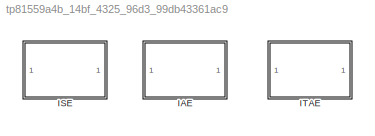
MODEL tp81559a4b_14bf_4325_96d3_99db43361ac9
KIND library
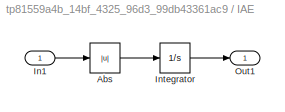
BLOCK [SubSystem] IAE
  MaskDescription = IAE performacne index\n\noutput = int |input| dt
  MaskDisplay = disp('IAE')\nport_label('input',1,'e')\nport_label('output',1,'iae')
  MaskIconFrame = on
  MaskIconOpaque = on
  MaskIconRotate = none
  MaskIconUnits = autoscale
  MinAlgLoopOccurrences = off
  Ports = [1, 1]
  RTWSystemCode = Auto
BLOCK [Abs] IAE/Abs
  SaturateOnIntegerOverflow = off
BLOCK [Inport] IAE/In1
  IconDisplay = Port number
BLOCK [Integrator] IAE/Integrator
  Ports = [1, 1]
BLOCK [Outport] IAE/Out1
  IconDisplay = Port number
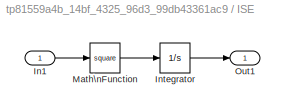
BLOCK [SubSystem] ISE
  MaskDescription = ISE performance index\n\noutput = int (input)^2 dt
  MaskDisplay = disp('ISE')\nport_label('input',1,'e')\nport_label('output',1,'ise')
  MaskIconFrame = on
  MaskIconOpaque = on
  MaskIconRotate = none
  MaskIconUnits = autoscale
  MinAlgLoopOccurrences = off
  Ports = [1, 1]
  RTWSystemCode = Auto
BLOCK [Inport] ISE/In1
  IconDisplay = Port number
BLOCK [Integrator] ISE/Integrator
  Ports = [1, 1]
BLOCK [Math] ISE/Math\nFunction
  Operator = square
  OutDataType = sfix(16)
  OutScaling = 2^0
  Ports = [1, 1]
BLOCK [Outport] ISE/Out1
  IconDisplay = Port number
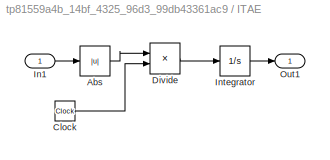
BLOCK [SubSystem] ITAE
  MaskDescription = ITAE performance index\n\noutput = int t|input| dt
  MaskDisplay = disp('ITAE')\nport_label('input',1,'e')\nport_label('output',1,'itae')
  MaskIconFrame = on
  MaskIconOpaque = on
  MaskIconRotate = none
  MaskIconUnits = autoscale
  MinAlgLoopOccurrences = off
  Ports = [1, 1]
  RTWSystemCode = Auto
BLOCK [Abs] ITAE/Abs
  SaturateOnIntegerOverflow = off
BLOCK [Clock] ITAE/Clock
  Decimation = 10
BLOCK [Product] ITAE/Divide
  InputSameDT = off
  Inputs = **
  OutDataType = sfix(16)
  OutDataTypeMode = Inherit via internal rule
  OutScaling = 2^-10
  Ports = [2, 1]
  RndMeth = Floor
  SaturateOnIntegerOverflow = off
BLOCK [Inport] ITAE/In1
  IconDisplay = Port number
BLOCK [Integrator] ITAE/Integrator
  Ports = [1, 1]
BLOCK [Outport] ITAE/Out1
  IconDisplay = Port number
LINE IAE/Abs:1 -> IAE/Integrator:1
LINE IAE/In1:1 -> IAE/Abs:1
LINE IAE/Integrator:1 -> IAE/Out1:1
LINE ISE/In1:1 -> ISE/Math\nFunction:1
LINE ISE/Integrator:1 -> ISE/Out1:1
LINE ISE/Math\nFunction:1 -> ISE/Integrator:1
LINE ITAE/Abs:1 -> ITAE/Divide:1
LINE ITAE/Clock:1 -> ITAE/Divide:2
LINE ITAE/Divide:1 -> ITAE/Integrator:1
LINE ITAE/In1:1 -> ITAE/Abs:1
LINE ITAE/Integrator:1 -> ITAE/Out1:1
